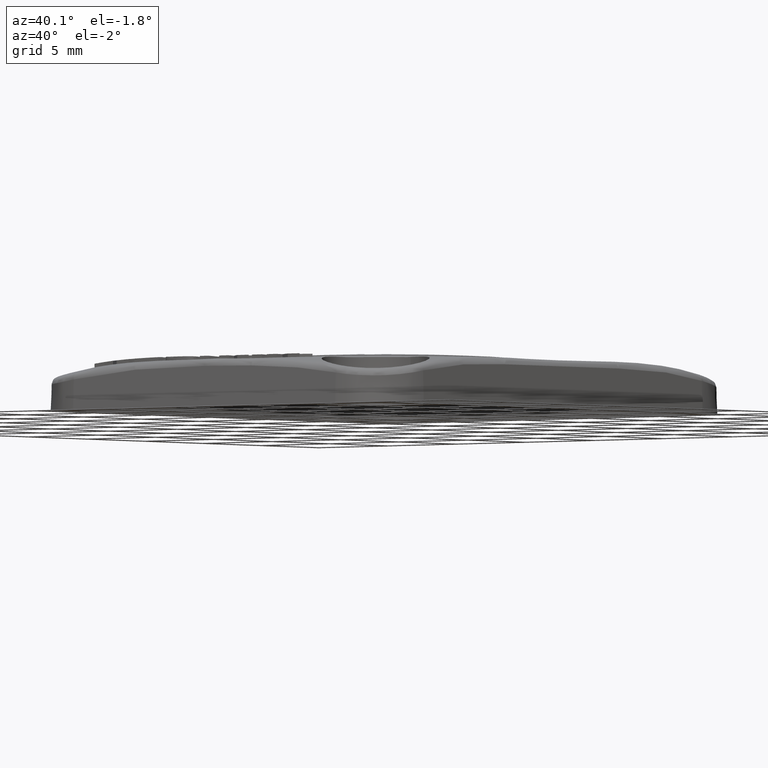
[diagram: clean part render]
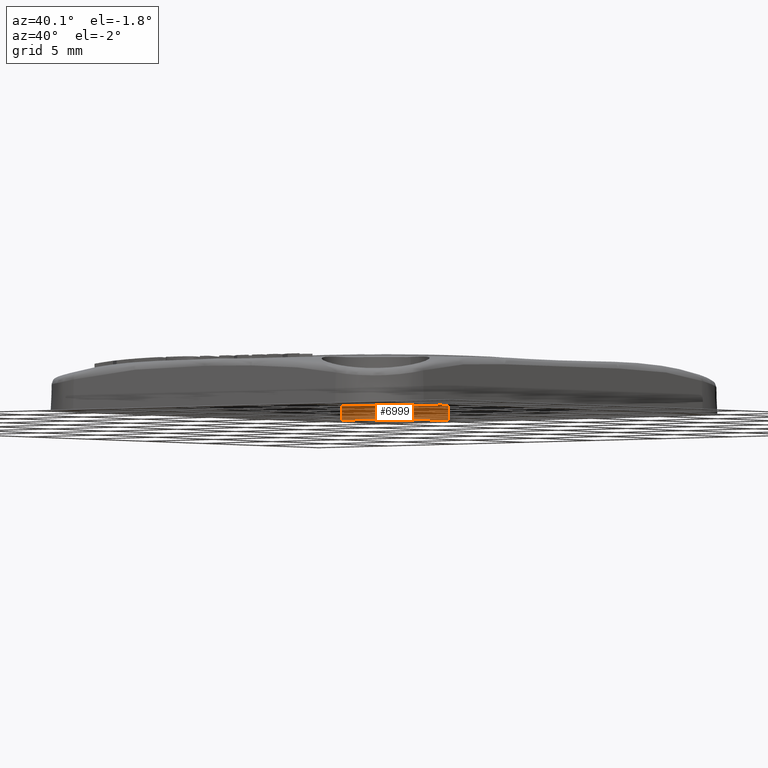
[diagram: same view with one face highlighted and labeled with its STEP entity id]
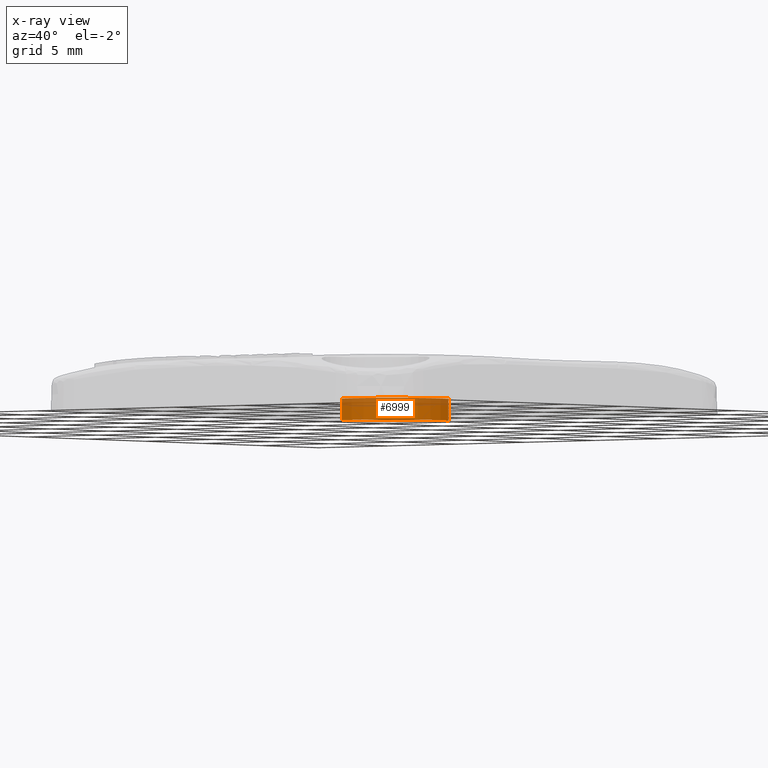
[diagram: x-ray of the same camera — body ghosted, the highlighted face saturated]
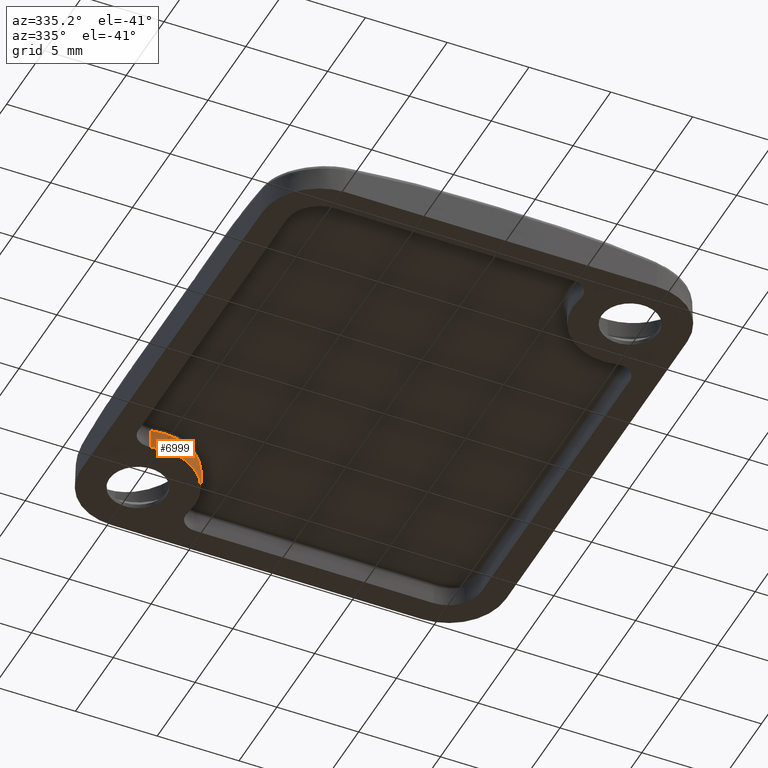
[diagram: same view with one face highlighted and labeled with its STEP entity id]
A machine part, auxiliary view. The second image highlights one B-rep face of the part: STEP entity #6999.
The next image is the same camera in x-ray: the body ghosted, the highlighted face saturated — about 35% of this face is hidden behind the body in this view.
A second angle (auxiliary view) of the same face is appended — the face is thin or edge-on in the first view.
In plain terms, the highlighted cylindrical surface (partial cylindrical patch) has radius 3.5 mm, axis along (0, 0, -1).
Its self-contained STEP definition (entity closure, byte-faithful):
#275=CARTESIAN_POINT('',(-9.5E0,1.2E1,0.E0));
#276=DIRECTION('',(0.E0,0.E0,-1.E0));
#277=DIRECTION('',(9.749960430436E-1,2.222222222222E-1,0.E0));
#278=AXIS2_PLACEMENT_3D('',#275,#276,#277);
#3025=DIRECTION('',(5.911234464880E-10,-2.593547598906E-9,1.E0));
#3026=VECTOR('',#3025,1.2E0);
#3027=CARTESIAN_POINT('',(-6.087513849348E0,1.277777777778E1,0.E0));
#3028=LINE('',#3027,#3026);
#3029=DIRECTION('',(3.407163440272E-9,-7.765639982911E-10,1.E0));
#3030=VECTOR('',#3029,1.2E0);
#3031=CARTESIAN_POINT('',(-1.027777777778E1,8.587513849347E0,0.E0));
#3032=LINE('',#3031,#3030);
#3033=CARTESIAN_POINT('',(-9.5E0,1.2E1,1.2E0));
#3034=DIRECTION('',(0.E0,0.E0,-1.E0));
#3035=DIRECTION('',(9.749960430436E-1,2.222222222222E-1,0.E0));
#3036=AXIS2_PLACEMENT_3D('',#3033,#3034,#3035);
#3593=CARTESIAN_POINT('',(-6.087513849348E0,1.277777777778E1,0.E0));
#3594=CARTESIAN_POINT('',(-6.087513848638E0,1.277777777467E1,1.2E0));
#3595=VERTEX_POINT('',#3593);
#3596=VERTEX_POINT('',#3594);
#3645=CARTESIAN_POINT('',(-1.027777777778E1,8.587513849347E0,0.E0));
#3646=CARTESIAN_POINT('',(-1.027777777369E1,8.587513848416E0,1.2E0));
#3647=VERTEX_POINT('',#3645);
#3648=VERTEX_POINT('',#3646);
#6985=CARTESIAN_POINT('',(-9.5E0,1.2E1,0.E0));
#6986=DIRECTION('',(0.E0,0.E0,-1.E0));
#6987=DIRECTION('',(-1.E0,0.E0,0.E0));
#6988=AXIS2_PLACEMENT_3D('',#6985,#6986,#6987);
#6989=CYLINDRICAL_SURFACE('',#6988,3.5E0);
#6991=ORIENTED_EDGE('',*,*,#6990,.F.);
#6993=ORIENTED_EDGE('',*,*,#6992,.F.);
#6994=ORIENTED_EDGE('',*,*,#3713,.T.);
#6996=ORIENTED_EDGE('',*,*,#6995,.T.);
#6997=EDGE_LOOP('',(#6991,#6993,#6994,#6996));
#6998=FACE_OUTER_BOUND('',#6997,.F.);
#279=CIRCLE('',#278,3.5E0);
#3037=CIRCLE('',#3036,3.5E0);
#3713=EDGE_CURVE('',#3595,#3647,#279,.T.);
#6990=EDGE_CURVE('',#3596,#3648,#3037,.T.);
#6992=EDGE_CURVE('',#3595,#3596,#3028,.T.);
#6995=EDGE_CURVE('',#3647,#3648,#3032,.T.);
#6999=ADVANCED_FACE('',(#6998),#6989,.T.);